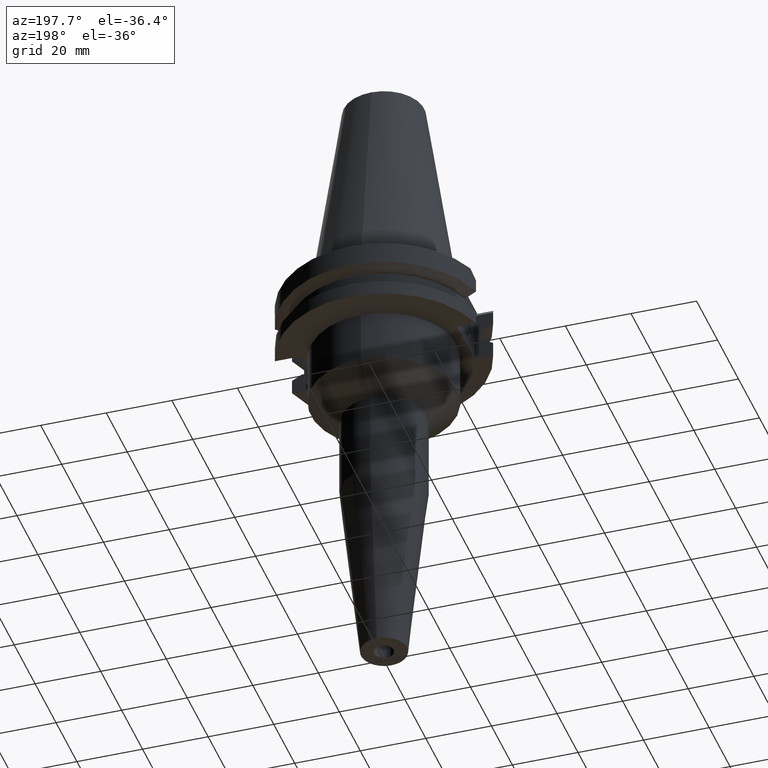
[diagram: clean part render]
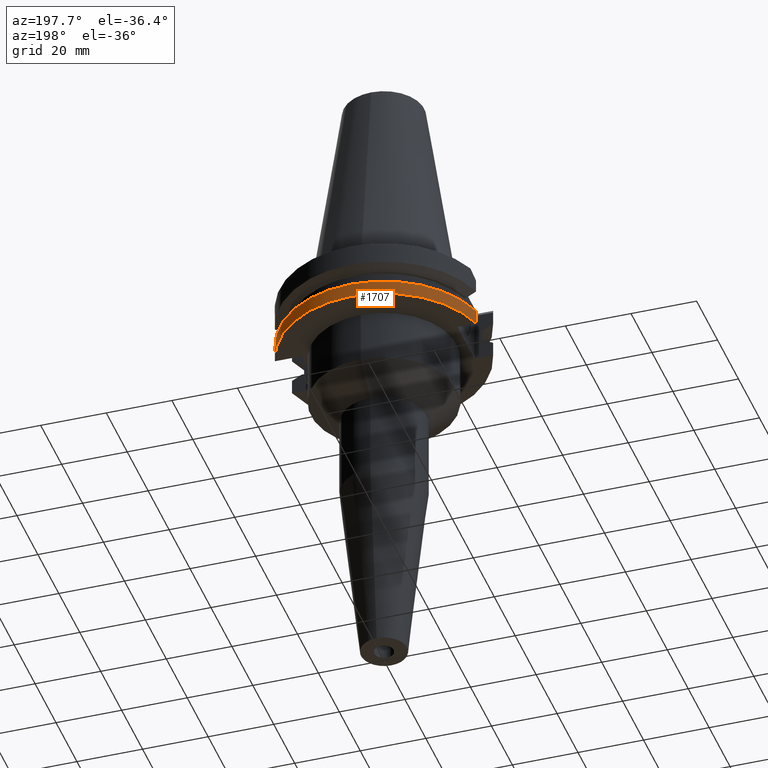
[diagram: same view with one face highlighted and labeled with its STEP entity id]
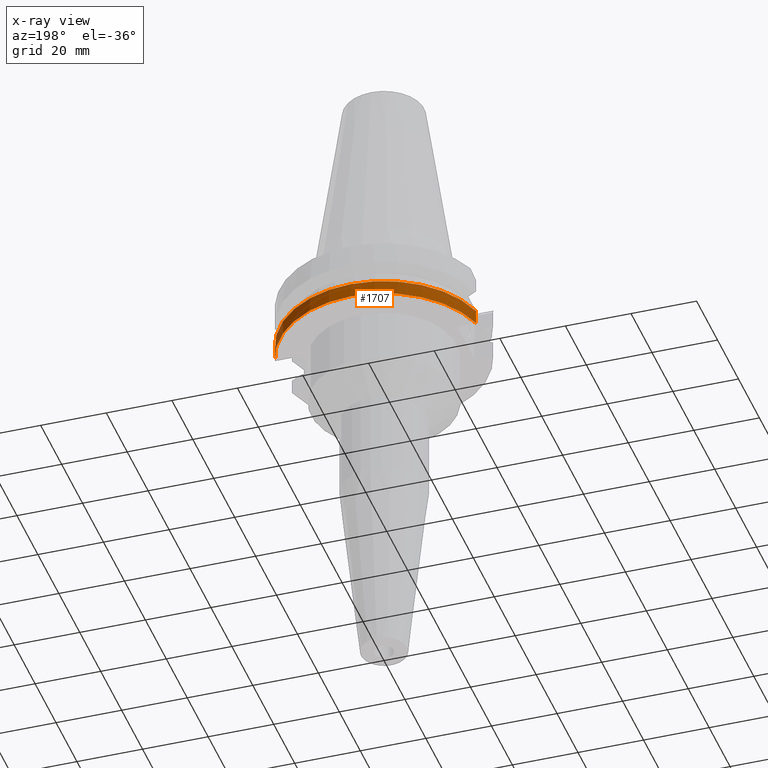
[diagram: x-ray of the same camera — body ghosted, the highlighted face saturated]
A machine part, auxiliary view. The second image highlights one B-rep face of the part: STEP entity #1707.
The next image is the same camera in x-ray: the body ghosted, the highlighted face saturated — about 0% of this face is hidden behind the body in this view.
In plain terms, the highlighted cylindrical surface (partial cylindrical patch) has radius 31.75 mm, axis along (0, 0, -1).
Its self-contained STEP definition (entity closure, byte-faithful):
#205=CARTESIAN_POINT('',(0.E0,2.178799736533E-14,-1.905E1));
#206=DIRECTION('',(0.E0,0.E0,1.E0));
#207=DIRECTION('',(9.661575315241E-1,2.579527559055E-1,0.E0));
#208=AXIS2_PLACEMENT_3D('',#205,#206,#207);
#213=CARTESIAN_POINT('',(0.E0,2.178799736533E-14,-1.905E1));
#214=DIRECTION('',(0.E0,0.E0,1.E0));
#215=DIRECTION('',(0.E0,1.E0,0.E0));
#216=AXIS2_PLACEMENT_3D('',#213,#214,#215);
#403=DIRECTION('',(7.635415634262E-9,-2.859775431056E-8,1.E0));
#404=VECTOR('',#403,4.396334354415E0);
#405=CARTESIAN_POINT('',(3.067550162589E1,8.19E0,-1.905E1));
#406=LINE('',#405,#404);
#410=DIRECTION('',(-3.682764164032E-8,-1.379378474635E-7,-1.E0));
#411=VECTOR('',#410,4.396327811835E0);
#412=CARTESIAN_POINT('',(-3.067550146398E1,8.190000606420E0,-1.465367218816E1));
#413=LINE('',#412,#411);
#437=CARTESIAN_POINT('',(0.E0,1.055026073065E-14,-1.465366676908E1));
#438=DIRECTION('',(0.E0,0.E0,-1.E0));
#439=DIRECTION('',(-9.661575315241E-1,2.579527559055E-1,0.E0));
#440=AXIS2_PLACEMENT_3D('',#437,#438,#439);
#445=CARTESIAN_POINT('',(0.E0,1.055026073065E-14,-1.465366676908E1));
#446=DIRECTION('',(0.E0,0.E0,-1.E0));
#447=DIRECTION('',(0.E0,1.E0,0.E0));
#448=AXIS2_PLACEMENT_3D('',#445,#446,#447);
#1284=CARTESIAN_POINT('',(3.067550162589E1,8.19E0,-1.905E1));
#1285=VERTEX_POINT('',#1284);
#1286=CARTESIAN_POINT('',(-2.339637701084E-14,3.175E1,-1.905E1));
#1287=CARTESIAN_POINT('',(-3.067550162589E1,8.19E0,-1.905E1));
#1288=VERTEX_POINT('',#1286);
#1289=VERTEX_POINT('',#1287);
#1324=CARTESIAN_POINT('',(3.067550165946E1,8.189999874275E0,-1.465366564559E1));
#1325=VERTEX_POINT('',#1324);
#1326=CARTESIAN_POINT('',(-3.067550162589E1,8.190000000001E0,
-1.465366676908E1));
#1327=CARTESIAN_POINT('',(0.E0,3.175E1,-1.465366676908E1));
#1328=VERTEX_POINT('',#1326);
#1329=VERTEX_POINT('',#1327);
#1692=CARTESIAN_POINT('',(0.E0,2.178799736533E-14,7.79125E1));
#1693=DIRECTION('',(0.E0,0.E0,-1.E0));
#1694=DIRECTION('',(0.E0,-1.E0,0.E0));
#1695=AXIS2_PLACEMENT_3D('',#1692,#1693,#1694);
#1696=CYLINDRICAL_SURFACE('',#1695,3.175E1);
#1697=ORIENTED_EDGE('',*,*,#1593,.T.);
#1699=ORIENTED_EDGE('',*,*,#1698,.F.);
#1701=ORIENTED_EDGE('',*,*,#1700,.F.);
#1702=ORIENTED_EDGE('',*,*,#1674,.T.);
#1703=ORIENTED_EDGE('',*,*,#1549,.F.);
#1704=ORIENTED_EDGE('',*,*,#1547,.F.);
#1705=EDGE_LOOP('',(#1697,#1699,#1701,#1702,#1703,#1704));
#1706=FACE_OUTER_BOUND('',#1705,.F.);
#209=CIRCLE('',#208,3.175E1);
#217=CIRCLE('',#216,3.175E1);
#441=CIRCLE('',#440,3.175E1);
#449=CIRCLE('',#448,3.175E1);
#1547=EDGE_CURVE('',#1285,#1288,#209,.T.);
#1549=EDGE_CURVE('',#1288,#1289,#217,.T.);
#1593=EDGE_CURVE('',#1285,#1325,#406,.T.);
#1674=EDGE_CURVE('',#1328,#1289,#413,.T.);
#1698=EDGE_CURVE('',#1329,#1325,#449,.T.);
#1700=EDGE_CURVE('',#1328,#1329,#441,.T.);
#1707=ADVANCED_FACE('',(#1706),#1696,.T.);